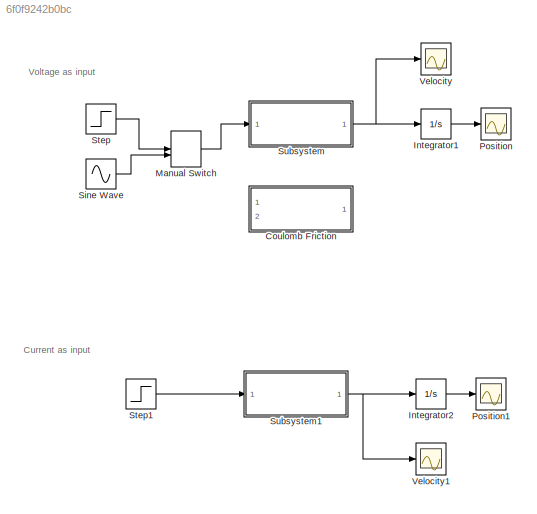
MODEL slx_6f0f9242b0bc
KIND model
CONFIG AbsTol = auto
CONFIG EnableMultiTasking = off
CONFIG FixedStep = auto
CONFIG MaxStep = auto
CONFIG MinStep = auto
CONFIG RelTol = 1e-3
CONFIG SampleTimeConstraint = Unconstrained
CONFIG Solver = VariableStepAuto
CONFIG SolverName = VariableStepAuto
CONFIG StartTime = 0.0
CONFIG StopTime = 10.0
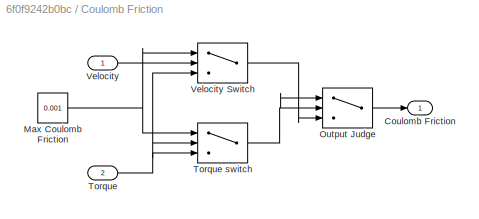
BLOCK [SubSystem] Coulomb Friction
  Ports = [2, 1]
  RequestExecContextInheritance = off
  Variant = off
BLOCK [Outport] Coulomb Friction/Coulomb Friction
  IconDisplay = Port number
BLOCK [Constant] Coulomb Friction/Max Coulomb Friction
  Value = 0.001
BLOCK [Switch] Coulomb Friction/Output Judge
  InputSameDT = off
  SaturateOnIntegerOverflow = off
  Threshold = 0.001
BLOCK [Inport] Coulomb Friction/Torque
  IconDisplay = Port number
  Port = 2
BLOCK [Switch] Coulomb Friction/Torque switch
  Criteria = u2 > Threshold
  InputSameDT = off
  SaturateOnIntegerOverflow = off
  Threshold = 0.001
BLOCK [Inport] Coulomb Friction/Velocity
  IconDisplay = Port number
BLOCK [Switch] Coulomb Friction/Velocity Switch 
  Criteria = u2 > Threshold
  InputSameDT = off
  SaturateOnIntegerOverflow = off
  Threshold = 0.001
BLOCK [Integrator] Integrator1
  Ports = [1, 1]
BLOCK [Integrator] Integrator2
  Ports = [1, 1]
BLOCK [ManualSwitch] Manual Switch
  CurrentSetting = 0
BLOCK [Scope] Position
  NumInputPorts = 1
  Ports = [1]
  ScopeSpecificationString = Simulink.scopes.TimeScopeBlockCfg('CurrentConfiguration', extmgr.ConfigurationSet(extmgr.Configuration('Core','General UI',true),extmgr.Configuration('Core','Source UI',true),extmgr.Configuration('Sources','WiredSimulink',true,'DataLoggingVariableName','ScopeData1'),extmgr.Configuration('Visuals','Time Domain',true,'SerializedDisplays',{struct('MinYLimReal','-0.00709','MaxYLimReal','0.03562','YLab...<+1389ch>
BLOCK [Scope] Position1
  NumInputPorts = 1
  Ports = [1]
  ScopeSpecificationString = Simulink.scopes.TimeScopeBlockCfg('CurrentConfiguration', extmgr.ConfigurationSet(extmgr.Configuration('Core','General UI',true),extmgr.Configuration('Core','Source UI',true),extmgr.Configuration('Sources','WiredSimulink',true,'DataLoggingVariableName','ScopeData2'),extmgr.Configuration('Visuals','Time Domain',true,'SerializedDisplays',{struct('MinYLimReal','-0.0946','MaxYLimReal','0.85138','YLabe...<+1368ch>
BLOCK [Sin] Sine Wave
  Amplitude = 10
  Ports = [0, 1]
  SampleTime = 0
BLOCK [Step] Step
  After = 10
  SampleTime = 0
BLOCK [Step] Step1
  SampleTime = 0
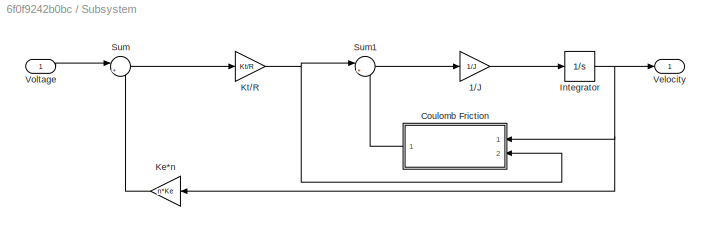
BLOCK [SubSystem] Subsystem
  Ports = [1, 1]
  RequestExecContextInheritance = off
  Variant = off
BLOCK [Gain] Subsystem/1//J
  Gain = 1/J
  OutDataTypeStr = Inherit: Inherit via internal rule
  ParamDataTypeStr = Inherit: Inherit via internal rule
  SaturateOnIntegerOverflow = off
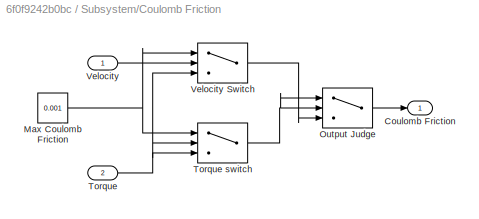
BLOCK [SubSystem] Subsystem/Coulomb Friction
  Ports = [2, 1]
  RequestExecContextInheritance = off
  Variant = off
BLOCK [Outport] Subsystem/Coulomb Friction/Coulomb Friction
  IconDisplay = Port number
BLOCK [Constant] Subsystem/Coulomb Friction/Max Coulomb Friction
  Value = 0.001
BLOCK [Switch] Subsystem/Coulomb Friction/Output Judge
  InputSameDT = off
  SaturateOnIntegerOverflow = off
  Threshold = 0.001
BLOCK [Inport] Subsystem/Coulomb Friction/Torque
  IconDisplay = Port number
  Port = 2
BLOCK [Switch] Subsystem/Coulomb Friction/Torque switch
  Criteria = u2 > Threshold
  InputSameDT = off
  SaturateOnIntegerOverflow = off
  Threshold = 0.001
BLOCK [Inport] Subsystem/Coulomb Friction/Velocity
  IconDisplay = Port number
BLOCK [Switch] Subsystem/Coulomb Friction/Velocity Switch 
  Criteria = u2 > Threshold
  InputSameDT = off
  SaturateOnIntegerOverflow = off
  Threshold = 0.001
BLOCK [Integrator] Subsystem/Integrator
  Ports = [1, 1]
BLOCK [Gain] Subsystem/Ke*n
  Gain = n*Ke
  OutDataTypeStr = Inherit: Inherit via internal rule
  ParamDataTypeStr = Inherit: Inherit via internal rule
  SaturateOnIntegerOverflow = off
BLOCK [Gain] Subsystem/Kt//R
  Gain = Kt/R
  OutDataTypeStr = Inherit: Inherit via internal rule
  ParamDataTypeStr = Inherit: Inherit via internal rule
  SaturateOnIntegerOverflow = off
BLOCK [Sum] Subsystem/Sum
  IconShape = round
  InputSameDT = off
  Inputs = |+-
  OutDataTypeStr = Inherit: Inherit via internal rule
  Ports = [2, 1]
  SaturateOnIntegerOverflow = off
BLOCK [Sum] Subsystem/Sum1
  IconShape = round
  InputSameDT = off
  Inputs = |+-
  OutDataTypeStr = Inherit: Inherit via internal rule
  Ports = [2, 1]
  SaturateOnIntegerOverflow = off
BLOCK [Outport] Subsystem/Velocity 
  IconDisplay = Port number
BLOCK [Inport] Subsystem/Voltage
  IconDisplay = Port number
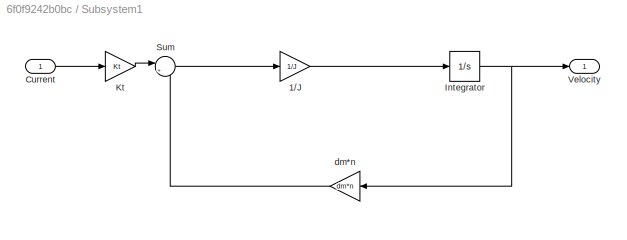
BLOCK [SubSystem] Subsystem1
  Ports = [1, 1]
  RequestExecContextInheritance = off
  Variant = off
BLOCK [Gain] Subsystem1/1//J
  Gain = 1/J
  OutDataTypeStr = Inherit: Inherit via internal rule
  ParamDataTypeStr = Inherit: Inherit via internal rule
  SaturateOnIntegerOverflow = off
BLOCK [Inport] Subsystem1/Current
  IconDisplay = Port number
BLOCK [Integrator] Subsystem1/Integrator
  Ports = [1, 1]
BLOCK [Gain] Subsystem1/Kt
  Gain = Kt
  OutDataTypeStr = Inherit: Inherit via internal rule
  ParamDataTypeStr = Inherit: Inherit via internal rule
  SaturateOnIntegerOverflow = off
BLOCK [Sum] Subsystem1/Sum
  IconShape = round
  InputSameDT = off
  Inputs = |+-
  OutDataTypeStr = Inherit: Inherit via internal rule
  Ports = [2, 1]
  SaturateOnIntegerOverflow = off
BLOCK [Outport] Subsystem1/Velocity 
  IconDisplay = Port number
BLOCK [Gain] Subsystem1/dm*n
  Gain = dm*n
  OutDataTypeStr = Inherit: Inherit via internal rule
  ParamDataTypeStr = Inherit: Inherit via internal rule
  SaturateOnIntegerOverflow = off
BLOCK [Scope] Velocity
  NumInputPorts = 1
  Ports = [1]
  ScopeSpecificationString = Simulink.scopes.TimeScopeBlockCfg('CurrentConfiguration', extmgr.ConfigurationSet(extmgr.Configuration('Core','General UI',true),extmgr.Configuration('Core','Source UI',true),extmgr.Configuration('Sources','WiredSimulink',true,'DataLoggingVariableName','ScopeData3'),extmgr.Configuration('Visuals','Time Domain',true,'SerializedDisplays',{struct('MinYLimReal','-0.00714','MaxYLimReal','0.03175','YLab...<+1422ch>
BLOCK [Scope] Velocity1
  NumInputPorts = 1
  Ports = [1]
  ScopeSpecificationString = Simulink.scopes.TimeScopeBlockCfg('CurrentConfiguration', extmgr.ConfigurationSet(extmgr.Configuration('Core','General UI',true),extmgr.Configuration('Core','Source UI',true),extmgr.Configuration('Sources','WiredSimulink',true),extmgr.Configuration('Visuals','Time Domain',true,'SerializedDisplays',{struct('MinYLimReal','-0.02102','MaxYLimReal','0.18919','YLabelReal','','MinYLimMag','0.00000','MaxY...<+1330ch>
ANNOTATION (root): Current as input
ANNOTATION (root): Voltage as input
NET Coulomb Friction/Max Coulomb Friction:1 -> Coulomb Friction/Torque switch:1, Coulomb Friction/Velocity Switch :1
LINE Coulomb Friction/Output Judge:1 -> Coulomb Friction/Coulomb Friction:1
NET Coulomb Friction/Torque switch:1 -> Coulomb Friction/Output Judge:1, Coulomb Friction/Output Judge:2
NET Coulomb Friction/Torque:1 -> Coulomb Friction/Torque switch:2, Coulomb Friction/Torque switch:3, Coulomb Friction/Velocity Switch :3
LINE Coulomb Friction/Velocity Switch :1 -> Coulomb Friction/Output Judge:3
LINE Coulomb Friction/Velocity:1 -> Coulomb Friction/Velocity Switch :2
LINE Integrator1:1 -> Position:1
LINE Integrator2:1 -> Position1:1
LINE Manual Switch:1 -> Subsystem:1
LINE Sine Wave:1 -> Manual Switch:2
LINE Step1:1 -> Subsystem1:1
LINE Step:1 -> Manual Switch:1
LINE Subsystem/1//J:1 -> Subsystem/Integrator:1
NET Subsystem/Coulomb Friction/Max Coulomb Friction:1 -> Subsystem/Coulomb Friction/Torque switch:1, Subsystem/Coulomb Friction/Velocity Switch :1
LINE Subsystem/Coulomb Friction/Output Judge:1 -> Subsystem/Coulomb Friction/Coulomb Friction:1
NET Subsystem/Coulomb Friction/Torque switch:1 -> Subsystem/Coulomb Friction/Output Judge:1, Subsystem/Coulomb Friction/Output Judge:2
NET Subsystem/Coulomb Friction/Torque:1 -> Subsystem/Coulomb Friction/Torque switch:2, Subsystem/Coulomb Friction/Torque switch:3, Subsystem/Coulomb Friction/Velocity Switch :3
LINE Subsystem/Coulomb Friction/Velocity Switch :1 -> Subsystem/Coulomb Friction/Output Judge:3
LINE Subsystem/Coulomb Friction/Velocity:1 -> Subsystem/Coulomb Friction/Velocity Switch :2
LINE Subsystem/Coulomb Friction:1 -> Subsystem/Sum1:2
NET Subsystem/Integrator:1 -> Subsystem/Coulomb Friction:1, Subsystem/Ke*n:1, Subsystem/Velocity :1
LINE Subsystem/Ke*n:1 -> Subsystem/Sum:2
NET Subsystem/Kt//R:1 -> Subsystem/Coulomb Friction:2, Subsystem/Sum1:1
LINE Subsystem/Sum1:1 -> Subsystem/1//J:1
LINE Subsystem/Sum:1 -> Subsystem/Kt//R:1
LINE Subsystem/Voltage:1 -> Subsystem/Sum:1
LINE Subsystem1/1//J:1 -> Subsystem1/Integrator:1
LINE Subsystem1/Current:1 -> Subsystem1/Kt:1
NET Subsystem1/Integrator:1 -> Subsystem1/Velocity :1, Subsystem1/dm*n:1
LINE Subsystem1/Kt:1 -> Subsystem1/Sum:1
LINE Subsystem1/Sum:1 -> Subsystem1/1//J:1
LINE Subsystem1/dm*n:1 -> Subsystem1/Sum:2
NET Subsystem1:1 -> Integrator2:1, Velocity1:1
NET Subsystem:1 -> Integrator1:1, Velocity:1
note: NET lines group one-source signal fan-out (src -> all destinations, sorted); 1:1 wires keep LINE
